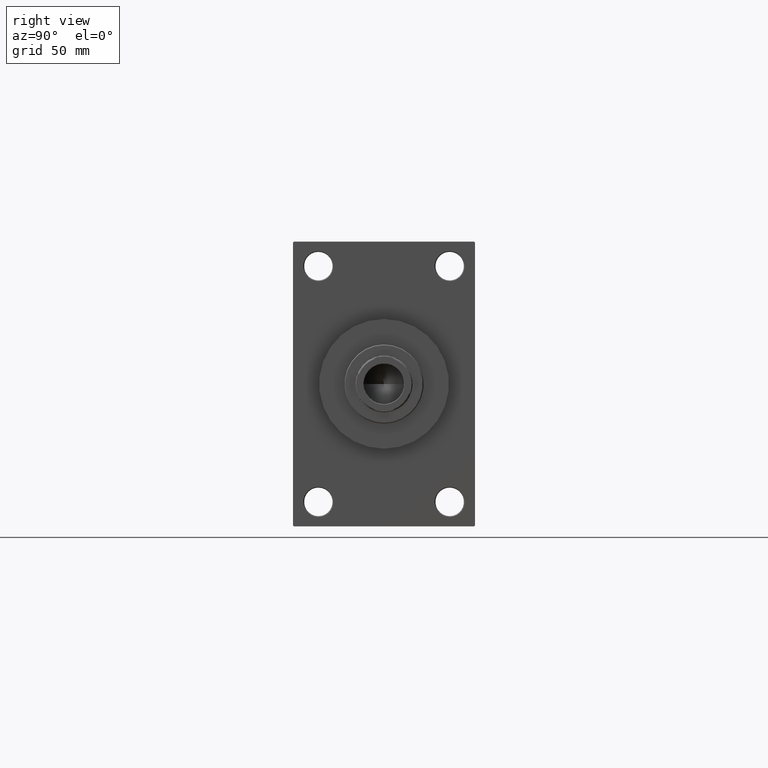
[diagram: clean part render]
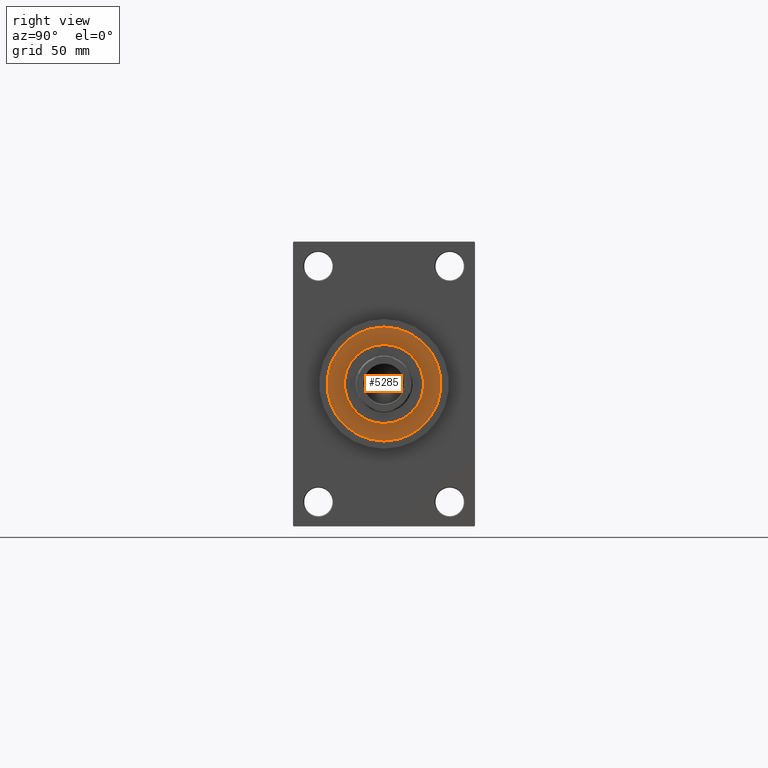
[diagram: same view with one face highlighted and labeled with its STEP entity id]
A machine part, right view. The second image highlights one B-rep face of the part: STEP entity #5285.
In plain terms, the highlighted planar face has unit normal (1, -0, -0).
Its self-contained STEP definition (entity closure, byte-faithful):
#183 = ORIENTED_EDGE ( 'NONE', *, *, #17762, .F. ) ;
#2756 = AXIS2_PLACEMENT_3D ( 'NONE', #33068, #43692, #28726 ) ;
#2918 = CARTESIAN_POINT ( 'NONE',  ( 0.000000000000000000, 0.000000000000000000, 43.25999999999999801 ) ) ;
#3147 = VERTEX_POINT ( 'NONE', #28247 ) ;
#5285 = ADVANCED_FACE ( 'NONE', ( #9143, #28176 ), #46758, .T. ) ;
#5347 = EDGE_CURVE ( 'NONE', #31265, #38466, #15567, .T. ) ;
#5574 = DIRECTION ( 'NONE',  ( 1.000000000000000000, 0.000000000000000000, 0.000000000000000000 ) ) ;
#5949 = AXIS2_PLACEMENT_3D ( 'NONE', #2918, #42945, #5574 ) ;
#9143 = FACE_BOUND ( 'NONE', #21844, .T. ) ;
#9596 = CARTESIAN_POINT ( 'NONE',  ( 0.000000000000000000, 0.000000000000000000, 43.25999999999999801 ) ) ;
#10821 = DIRECTION ( 'NONE',  ( 0.000000000000000000, 0.000000000000000000, 1.000000000000000000 ) ) ;
#13002 = DIRECTION ( 'NONE',  ( 0.000000000000000000, 0.000000000000000000, 1.000000000000000000 ) ) ;
#13705 = ORIENTED_EDGE ( 'NONE', *, *, #24211, .F. ) ;
#15567 = CIRCLE ( 'NONE', #42538, 36.00000000000000000 ) ;
#15966 = VERTEX_POINT ( 'NONE', #47697 ) ;
#17762 = EDGE_CURVE ( 'NONE', #15966, #3147, #25187, .T. ) ;
#18141 = CIRCLE ( 'NONE', #2756, 25.00000000000000000 ) ;
#20639 = AXIS2_PLACEMENT_3D ( 'NONE', #9596, #39262, #28879 ) ;
#21689 = CARTESIAN_POINT ( 'NONE',  ( -36.00000000000000000, 0.000000000000000000, 43.25999999999999801 ) ) ;
#21844 = EDGE_LOOP ( 'NONE', ( #13705, #183 ) ) ;
#23704 = CARTESIAN_POINT ( 'NONE',  ( 36.00000000000000000, 4.408728476930470856E-15, 43.25999999999999801 ) ) ;
#23837 = CARTESIAN_POINT ( 'NONE',  ( 0.000000000000000000, 0.000000000000000000, 43.25999999999999801 ) ) ;
#24211 = EDGE_CURVE ( 'NONE', #3147, #15966, #18141, .T. ) ;
#24315 = DIRECTION ( 'NONE',  ( 1.000000000000000000, 0.000000000000000000, -0.000000000000000000 ) ) ;
#25187 = CIRCLE ( 'NONE', #5949, 25.00000000000000000 ) ;
#28176 = FACE_OUTER_BOUND ( 'NONE', #45921, .T. ) ;
#28247 = CARTESIAN_POINT ( 'NONE',  ( -25.00000000000000000, 0.000000000000000000, 43.25999999999999801 ) ) ;
#28726 = DIRECTION ( 'NONE',  ( 1.000000000000000000, 0.000000000000000000, 0.000000000000000000 ) ) ;
#28879 = DIRECTION ( 'NONE',  ( 1.000000000000000000, 0.000000000000000000, 0.000000000000000000 ) ) ;
#31265 = VERTEX_POINT ( 'NONE', #21689 ) ;
#33068 = CARTESIAN_POINT ( 'NONE',  ( 0.000000000000000000, 0.000000000000000000, 43.25999999999999801 ) ) ;
#33477 = DIRECTION ( 'NONE',  ( 1.000000000000000000, 0.000000000000000000, 0.000000000000000000 ) ) ;
#33593 = EDGE_CURVE ( 'NONE', #38466, #31265, #33744, .T. ) ;
#33744 = CIRCLE ( 'NONE', #20639, 36.00000000000000000 ) ;
#38466 = VERTEX_POINT ( 'NONE', #23704 ) ;
#39262 = DIRECTION ( 'NONE',  ( 0.000000000000000000, 0.000000000000000000, 1.000000000000000000 ) ) ;
#42538 = AXIS2_PLACEMENT_3D ( 'NONE', #47249, #10821, #33477 ) ;
#42945 = DIRECTION ( 'NONE',  ( 0.000000000000000000, 0.000000000000000000, 1.000000000000000000 ) ) ;
#43629 = ORIENTED_EDGE ( 'NONE', *, *, #5347, .T. ) ;
#43692 = DIRECTION ( 'NONE',  ( 0.000000000000000000, 0.000000000000000000, 1.000000000000000000 ) ) ;
#44843 = AXIS2_PLACEMENT_3D ( 'NONE', #23837, #13002, #24315 ) ;
#45314 = ORIENTED_EDGE ( 'NONE', *, *, #33593, .T. ) ;
#45921 = EDGE_LOOP ( 'NONE', ( #43629, #45314 ) ) ;
#46758 = PLANE ( 'NONE',  #44843 ) ;
#47249 = CARTESIAN_POINT ( 'NONE',  ( 0.000000000000000000, 0.000000000000000000, 43.25999999999999801 ) ) ;
#47697 = CARTESIAN_POINT ( 'NONE',  ( 25.00000000000000000, 3.061616997868383043E-15, 43.25999999999999801 ) ) ;